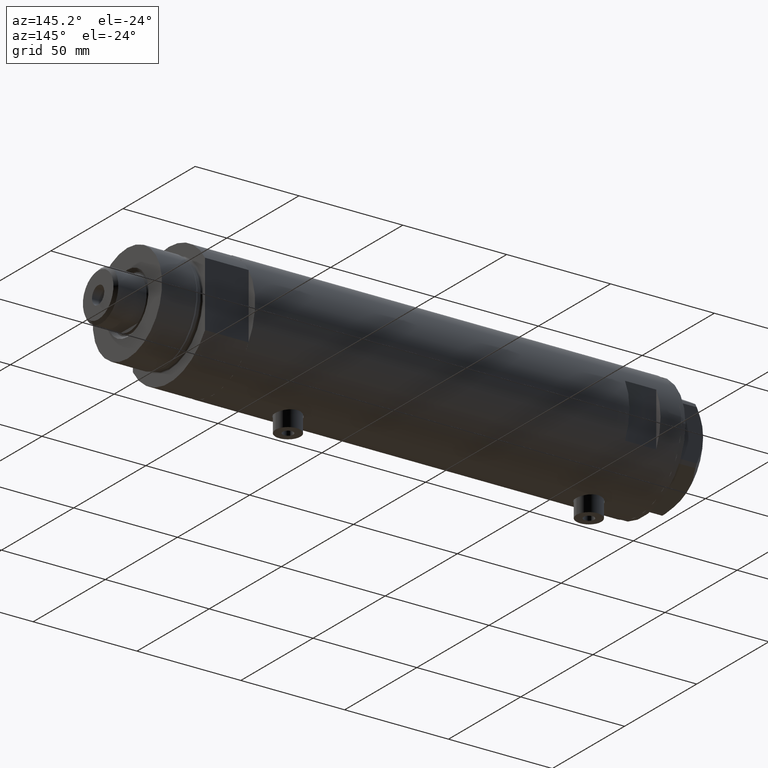
[diagram: clean part render]
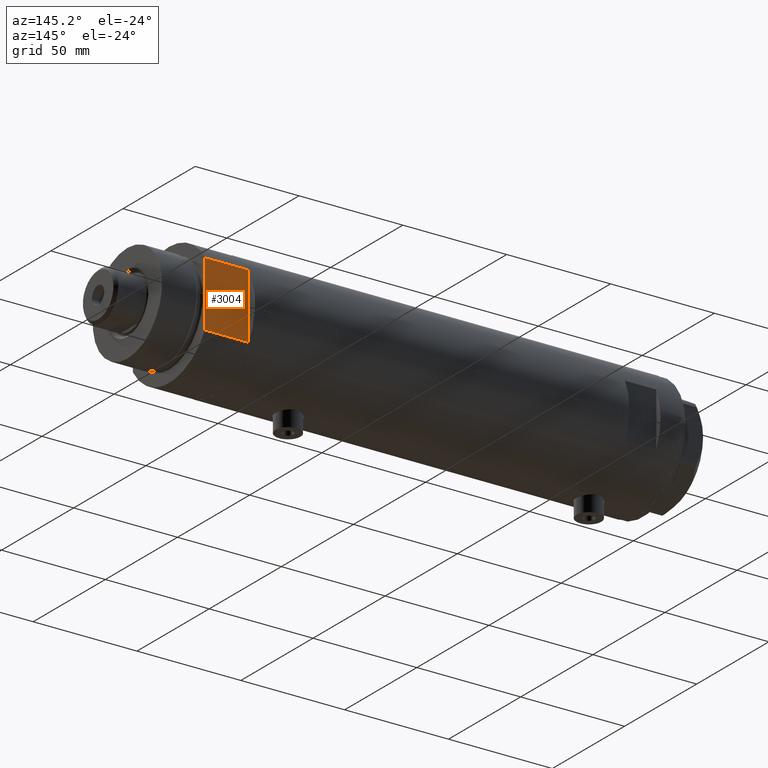
[diagram: same view with one face highlighted and labeled with its STEP entity id]
A machine part, auxiliary view. The second image highlights one B-rep face of the part: STEP entity #3004.
In plain terms, the highlighted planar face has unit normal (0, -1, -0).
Its self-contained STEP definition (entity closure, byte-faithful):
#22 = DIRECTION ( 'NONE',  ( 1.000000000000000000, 0.000000000000000000, 0.000000000000000000 ) ) ;
#251 = EDGE_CURVE ( 'NONE', #4339, #917, #835, .T. ) ;
#312 = ORIENTED_EDGE ( 'NONE', *, *, #4706, .T. ) ;
#359 = VECTOR ( 'NONE', #3687, 1000.000000000000000 ) ;
#452 = EDGE_LOOP ( 'NONE', ( #312, #4136, #3362, #1661, #2573, #2244 ) ) ;
#537 = CARTESIAN_POINT ( 'NONE',  ( -15.66045976336583045, 24.99999999999999645, 21.00000000000000355 ) ) ;
#661 = AXIS2_PLACEMENT_3D ( 'NONE', #2851, #4651, #1017 ) ;
#756 = CARTESIAN_POINT ( 'NONE',  ( -15.66045976336583401, 25.00000000000000000, 0.000000000000000000 ) ) ;
#762 = VERTEX_POINT ( 'NONE', #2469 ) ;
#835 = LINE ( 'NONE', #2750, #1277 ) ;
#866 = VERTEX_POINT ( 'NONE', #1470 ) ;
#907 = DIRECTION ( 'NONE',  ( -0.000000000000000000, -0.000000000000000000, 1.000000000000000000 ) ) ;
#917 = VERTEX_POINT ( 'NONE', #537 ) ;
#1017 = DIRECTION ( 'NONE',  ( 0.000000000000000000, -0.000000000000000000, -1.000000000000000000 ) ) ;
#1277 = VECTOR ( 'NONE', #907, 1000.000000000000000 ) ;
#1386 = DIRECTION ( 'NONE',  ( 1.000000000000000000, 0.000000000000000000, 0.000000000000000000 ) ) ;
#1470 = CARTESIAN_POINT ( 'NONE',  ( 7.141428428542853091, 25.00000000000000000, 0.000000000000000000 ) ) ;
#1479 = DIRECTION ( 'NONE',  ( 1.000000000000000000, 0.000000000000000000, 0.000000000000000000 ) ) ;
#1539 = EDGE_CURVE ( 'NONE', #2277, #4594, #2703, .T. ) ;
#1562 = CARTESIAN_POINT ( 'NONE',  ( 15.66045976336582690, 25.00000000000000000, 0.000000000000000000 ) ) ;
#1661 = ORIENTED_EDGE ( 'NONE', *, *, #4326, .F. ) ;
#1795 = CARTESIAN_POINT ( 'NONE',  ( -15.66045976336583401, 25.00000000000000000, 21.00000000000000000 ) ) ;
#1873 = CARTESIAN_POINT ( 'NONE',  ( -15.66045976336583401, 25.00000000000000000, 0.000000000000000000 ) ) ;
#1892 = LINE ( 'NONE', #2213, #359 ) ;
#2041 = CARTESIAN_POINT ( 'NONE',  ( 15.66045976336583045, 24.99999999999999645, 20.99999999999999645 ) ) ;
#2095 = FACE_OUTER_BOUND ( 'NONE', #452, .T. ) ;
#2213 = CARTESIAN_POINT ( 'NONE',  ( -15.66045976336583401, 25.00000000000000000, 0.000000000000000000 ) ) ;
#2244 = ORIENTED_EDGE ( 'NONE', *, *, #251, .T. ) ;
#2277 = VERTEX_POINT ( 'NONE', #1562 ) ;
#2392 = DIRECTION ( 'NONE',  ( -0.000000000000000000, -0.000000000000000000, 1.000000000000000000 ) ) ;
#2469 = CARTESIAN_POINT ( 'NONE',  ( -7.141428428542853091, 25.00000000000000000, 0.000000000000000000 ) ) ;
#2573 = ORIENTED_EDGE ( 'NONE', *, *, #3318, .F. ) ;
#2703 = LINE ( 'NONE', #4153, #4383 ) ;
#2750 = CARTESIAN_POINT ( 'NONE',  ( -15.66045976336583401, 25.00000000000000000, 0.000000000000000000 ) ) ;
#2851 = CARTESIAN_POINT ( 'NONE',  ( -15.66045976336583401, 25.00000000000000000, 0.000000000000000000 ) ) ;
#3004 = ADVANCED_FACE ( 'NONE', ( #2095 ), #3545, .F. ) ;
#3275 = LINE ( 'NONE', #1873, #4090 ) ;
#3318 = EDGE_CURVE ( 'NONE', #4339, #762, #1892, .T. ) ;
#3362 = ORIENTED_EDGE ( 'NONE', *, *, #4670, .F. ) ;
#3543 = VECTOR ( 'NONE', #1479, 1000.000000000000000 ) ;
#3545 = PLANE ( 'NONE',  #661 ) ;
#3687 = DIRECTION ( 'NONE',  ( 1.000000000000000000, 0.000000000000000000, 0.000000000000000000 ) ) ;
#3691 = CARTESIAN_POINT ( 'NONE',  ( -15.66045976336583401, 25.00000000000000000, 0.000000000000000000 ) ) ;
#4004 = LINE ( 'NONE', #1795, #3543 ) ;
#4090 = VECTOR ( 'NONE', #22, 1000.000000000000000 ) ;
#4136 = ORIENTED_EDGE ( 'NONE', *, *, #1539, .F. ) ;
#4153 = CARTESIAN_POINT ( 'NONE',  ( 15.66045976336583401, 25.00000000000000000, 0.000000000000000000 ) ) ;
#4326 = EDGE_CURVE ( 'NONE', #762, #866, #3275, .T. ) ;
#4339 = VERTEX_POINT ( 'NONE', #756 ) ;
#4383 = VECTOR ( 'NONE', #2392, 1000.000000000000000 ) ;
#4393 = VECTOR ( 'NONE', #1386, 1000.000000000000000 ) ;
#4412 = LINE ( 'NONE', #3691, #4393 ) ;
#4594 = VERTEX_POINT ( 'NONE', #2041 ) ;
#4651 = DIRECTION ( 'NONE',  ( 0.000000000000000000, -1.000000000000000000, 0.000000000000000000 ) ) ;
#4670 = EDGE_CURVE ( 'NONE', #866, #2277, #4412, .T. ) ;
#4706 = EDGE_CURVE ( 'NONE', #917, #4594, #4004, .T. ) ;